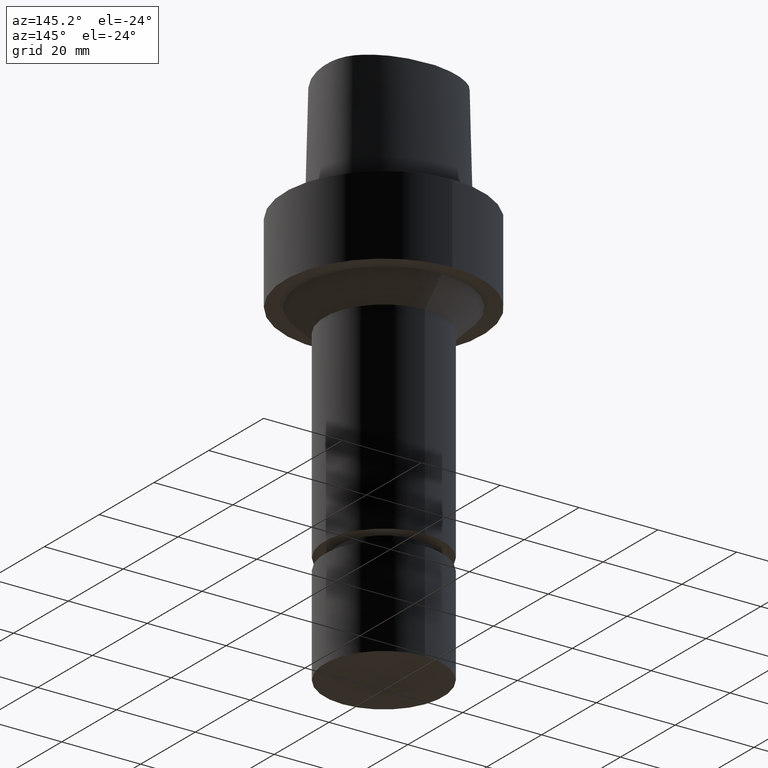
[diagram: clean part render]
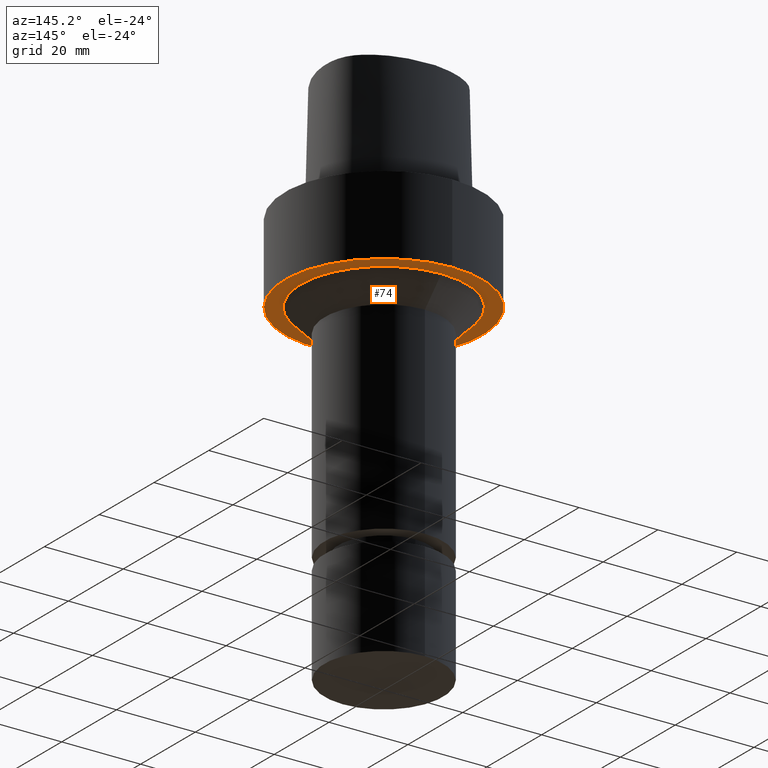
[diagram: same view with one face highlighted and labeled with its STEP entity id]
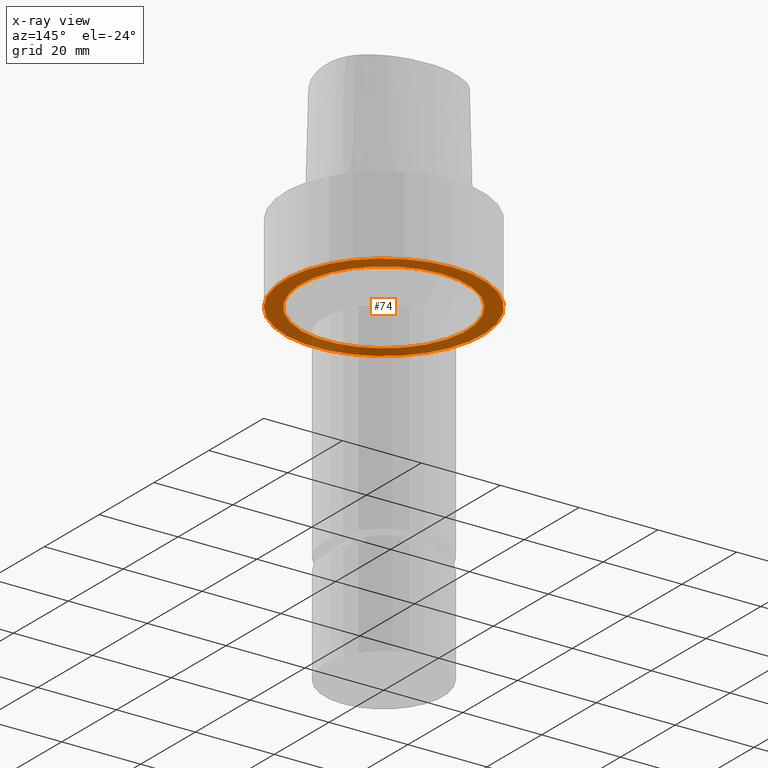
[diagram: x-ray of the same camera — body ghosted, the highlighted face saturated]
A machine part, auxiliary view. The second image highlights one B-rep face of the part: STEP entity #74.
The next image is the same camera in x-ray: the body ghosted, the highlighted face saturated — about 23% of this face is hidden behind the body in this view.
In plain terms, the highlighted planar face has unit normal (0, 0, -1).
Its self-contained STEP definition (entity closure, byte-faithful):
#74=ADVANCED_FACE('Unnamed[1]',(#180,#181),#182,.T.);
#137=EDGE_CURVE('Unnamed[1]',#274,#274,#275,.T.);
#143=EDGE_CURVE('Unnamed[1]',#283,#283,#284,.T.);
#180=FACE_BOUND('',#415,.T.);
#181=FACE_OUTER_BOUND('',#416,.T.);
#182=PLANE('',#417);
#274=VERTEX_POINT('',#965);
#275=CIRCLE('',#966,25.0);
#283=VERTEX_POINT('',#977);
#284=CIRCLE('',#978,21.0000000000003);
#415=EDGE_LOOP('',(#999));
#416=EDGE_LOOP('',(#1000));
#417=AXIS2_PLACEMENT_3D('',#1001,#1002,#1003);
#965=CARTESIAN_POINT('',(1.22464679914735E-015,25.0,-20.0));
#966=AXIS2_PLACEMENT_3D('',#1098,#1099,#1100);
#977=CARTESIAN_POINT('',(1.22464679914735E-015,21.0000000000003,-20.0));
#978=AXIS2_PLACEMENT_3D('',#1107,#1108,#1109);
#999=ORIENTED_EDGE('',*,*,#143,.F.);
#1000=ORIENTED_EDGE('',*,*,#137,.T.);
#1001=CARTESIAN_POINT('',(1.22464679914735E-015,23.0000000000001,-20.0));
#1002=DIRECTION('',(6.12323399573677E-017,1.22464679914735E-016,-1.0));
#1003=DIRECTION('',(-1.23259516440783E-032,1.0,1.22464679914735E-016));
#1098=CARTESIAN_POINT('',(1.22464679914735E-015,2.44929359829471E-015,-20.0));
#1099=DIRECTION('',(6.12323399573677E-017,1.22464679914735E-016,-1.0));
#1100=DIRECTION('',(-1.23259516440783E-032,1.0,1.22464679914735E-016));
#1107=CARTESIAN_POINT('',(1.22464679914735E-015,2.44929359829471E-015,-20.0));
#1108=DIRECTION('',(6.12323399573677E-017,1.22464679914735E-016,-1.0));
#1109=DIRECTION('',(-1.23259516440783E-032,1.0,1.22464679914735E-016));